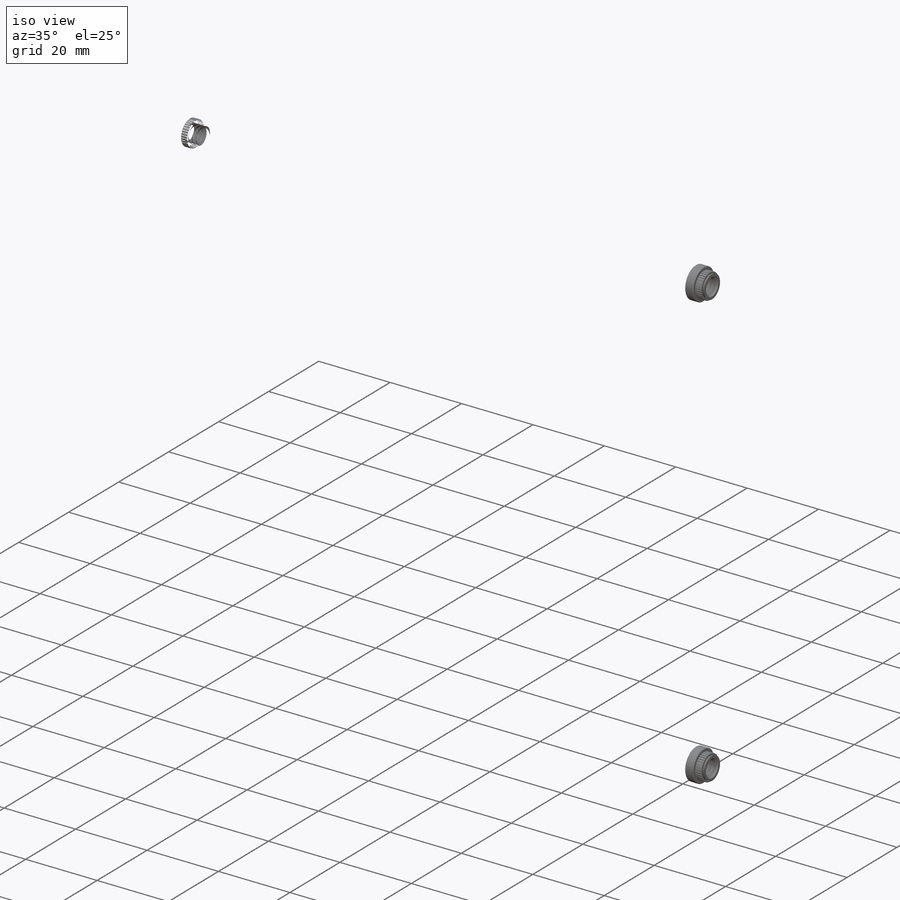
[diagram: iso view]
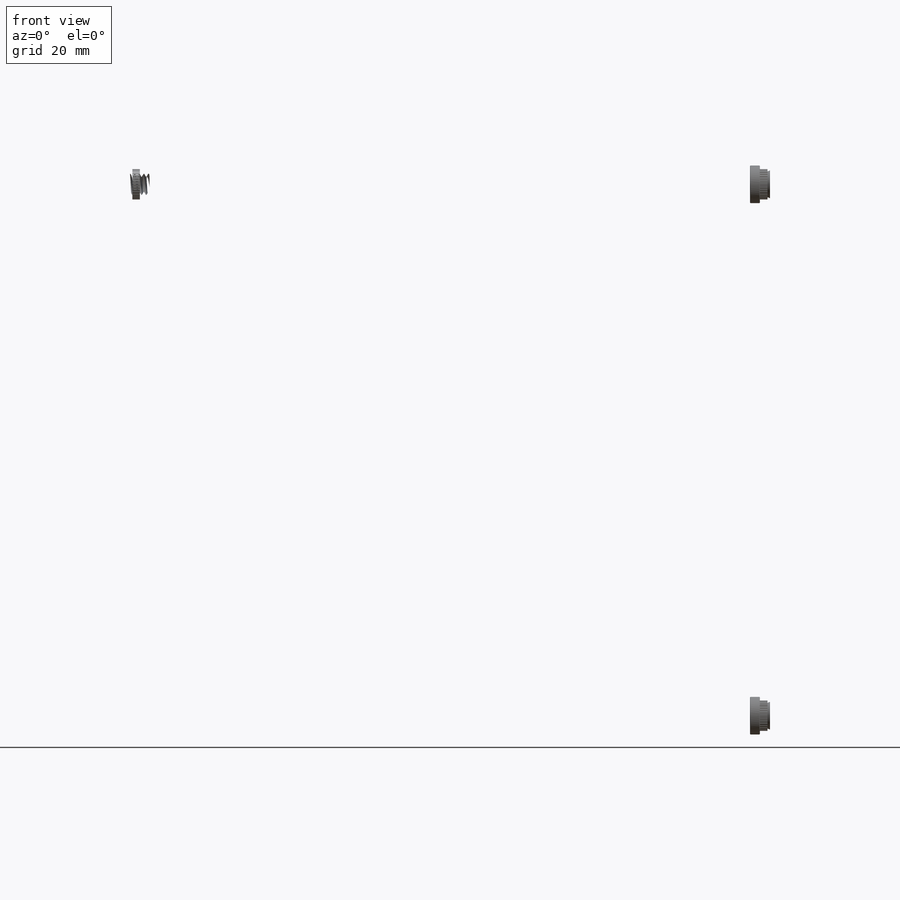
[diagram: front view]
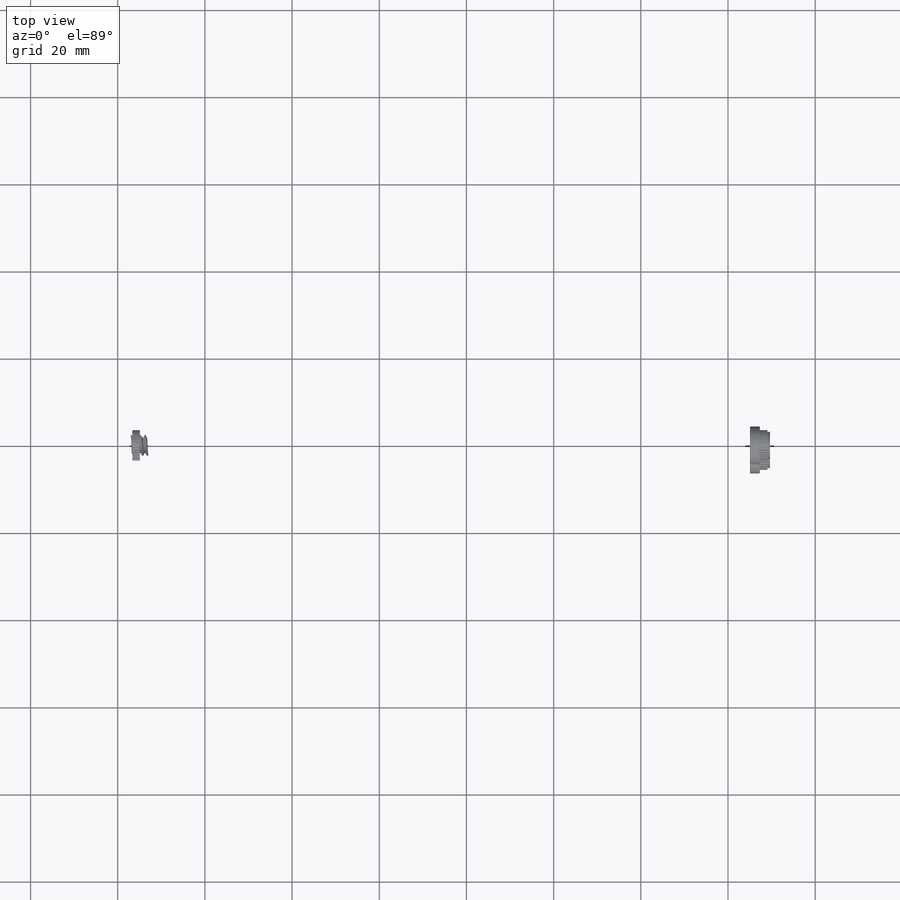
[diagram: top view]
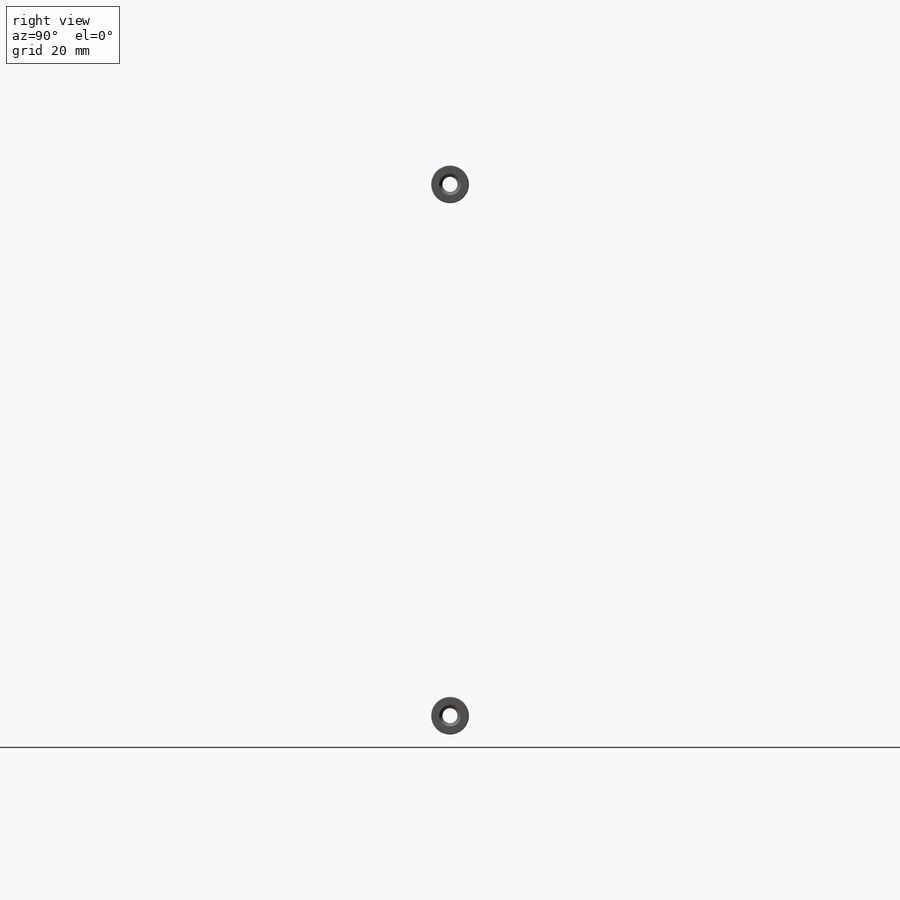
[diagram: right view]
SOLIDWORKS PART (.sldprt)
format: sldprt  version: not decoded by parser v0  size: 3,408,896 bytes
history: native  units: mm
features: sketch x12, cut_extrude x6, extrude x5, move_body x4, delete_body x4, mirror x2, fillet x2, material x1, plane x1 + 4 further entries (+32 scaffold rows collapsed; 20 parser-record rows omitted)
feature tree (93):
  scaffold x32  (default folders/planes/origin — collapsed)
  material  "Material <not specified>"
  sketch  "Sketch1"  dims[c1.D1=25.4mm c1.D2=25.4mm c1.D3=25.4mm c2.D2=25.4mm]
  cut_extrude  "Cut-Extrude1"  Depth=68.58mm
  sketch  "Sketch3"  dims[c1.D1=8.3312mm c1.D2=22.225mm c1.D3=234.95mm c2.D2=75.5396mm]
  cut_extrude  "Cut-Extrude2"  [1 undecoded]
  "96439A610"
  parser-record x20  (decoder bookkeeping rows leaked as tree rows — omitted from the tree; the rows remain in map.json)
  move_body  "Body-Move/Copy2"
  "96439A6102"
  move_body  "Body-Move/Copy4"
  plane  "Plane1"
  mirror  "Mirror1"
  sketch  "Sketch4"
  extrude  "Boss-Extrude1"  [1 undecoded]
  sketch  "Sketch5"  dims[c1.D1=15.875mm c1.D2=15.875mm c2.D1=22.225mm c2.D3=15.875mm]
  cut_extrude  "Cut-Extrude3"  Depth=56.1975mm
  sketch  "Sketch6"  dims[c1.D2=3.175mm c1.D1=212.725mm c1.D3=19.05mm c1.D4=60.0mm c2.D1=212.725mm c2.D5=53.05mm c2.D3=3.0mm c3.D5=28.0mm]
  cut_extrude  "Cut-Extrude4"  Depth=7.9375mm
  delete_body  "Body-Delete1"
  delete_body  "Move Face2"
  sketch  "Sketch7"
  extrude  "Boss-Extrude2"  [1 undecoded]
  sketch  "Sketch8"
  extrude  "Boss-Extrude3"  [1 undecoded]
  fillet  "Fillet1"  Radius=6.35mm
  sketch  "Sketch9"
  extrude  "Boss-Extrude4"  [1 undecoded]
  sketch  "Sketch10"
  extrude  "Boss-Extrude5"  [1 undecoded]
  sketch  "Sketch11"  dims[D3=6.35mm D1=212.725mm D2=13.97mm]
  cut_extrude  "Cut-Extrude5"  Depth=203.2mm
  delete_body  "Move Face3"
  delete_body  "Move Face4"
  "96439A450"
  move_body  "Body-Move/Copy6"
  "96439A4502"
  move_body  "Body-Move/Copy8"
  mirror  "Mirror2"
  sketch  "Sketch12"  dims[c1.D1=6.35mm c1.D2=6.35mm c1.D3=19.05mm c1.D4=19.05mm c2.D1=19.05mm c2.D2=19.05mm]
  cut_extrude  "Cut-Extrude6"  Depth=7.62mm
  fillet  "Fillet2"  Radius=5.08mm
  sketch  "Sketch13"
decode coverage: 13 of 35 modeling features carry decoded parameters; 4 rows unclassified (native names shown)
note: 6 parameter values undecoded
summary: no parameter record found for 6 features
note: suppression state not decoded; provenance and decode notes live in map.json
